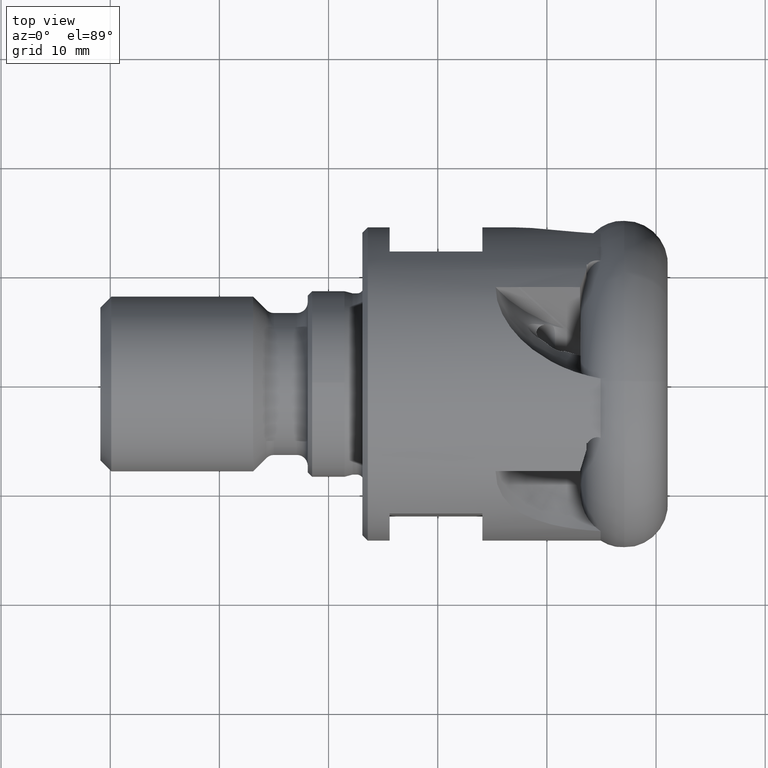
[diagram: clean part render]
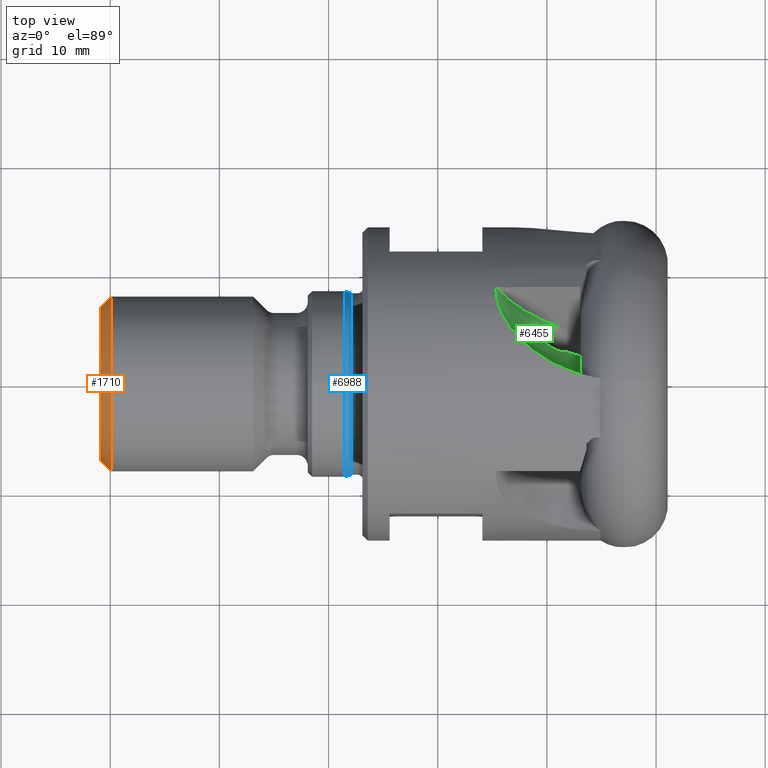
[diagram: same view with three faces highlighted in distinct colors, each labeled with its STEP entity id]
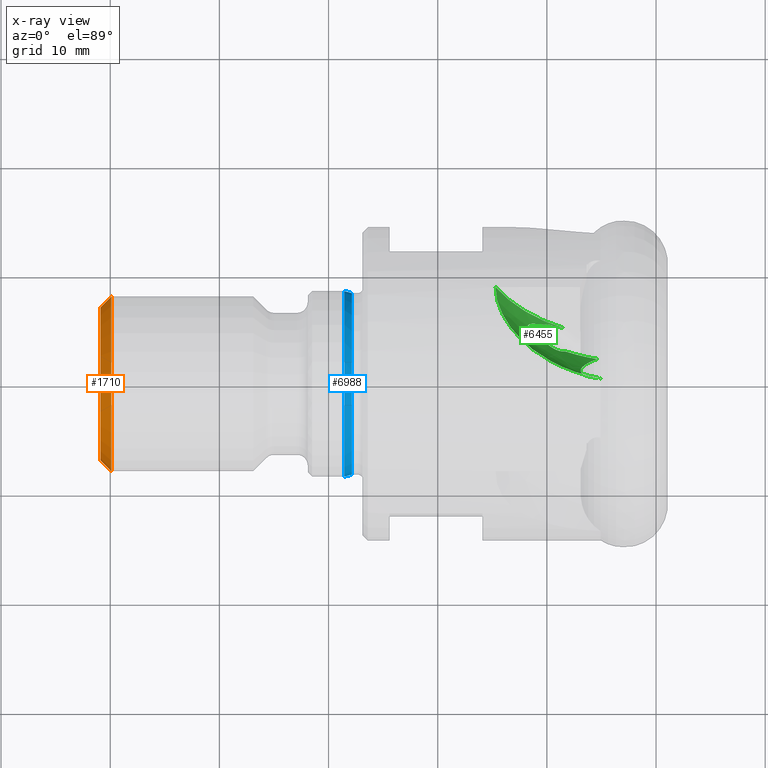
[diagram: x-ray of the same camera — body ghosted, the three highlighted faces saturated]
A machine part, top view with three faces highlighted in distinct colors.
The next image is the same camera in x-ray (body ghosted, the three faces saturated) — at least one of them is partly hidden behind the body in this view.
Their STEP definitions:

[orange] entity #1710 — the highlighted conical surface has half-angle 45 deg.
#270 = FACE_OUTER_BOUND ( 'NONE', #6860, .T. ) ;
#307 = DIRECTION ( 'NONE',  ( 1.000000000000000000, 1.048127383635773700E-016, -0.0000000000000000000 ) ) ;
#730 = CIRCLE ( 'NONE', #5746, 6.999999999999986700 ) ;
#889 = CARTESIAN_POINT ( 'NONE',  ( -49.90800000000000100, 7.999999999999994700, 0.0000000000000000000 ) ) ;
#1012 = CARTESIAN_POINT ( 'NONE',  ( -49.90800000000000100, -5.230994146249419500E-015, 0.0000000000000000000 ) ) ;
#1200 = AXIS2_PLACEMENT_3D ( 'NONE', #2182, #307, #5363 ) ;
#1413 = EDGE_CURVE ( 'NONE', #3589, #4894, #2075, .T. ) ;
#1710 = ADVANCED_FACE ( 'NONE', ( #270 ), #3466, .T. ) ;
#2005 = CARTESIAN_POINT ( 'NONE',  ( -49.90800000000000100, -8.000000000000005300, 9.797174393178825700E-016 ) ) ;
#2075 = LINE ( 'NONE', #2005, #5380 ) ;
#2182 = CARTESIAN_POINT ( 'NONE',  ( -49.90800000000000100, -5.230994146249419500E-015, 0.0000000000000000000 ) ) ;
#2585 = CARTESIAN_POINT ( 'NONE',  ( -49.90800000000000100, -8.000000000000005300, 9.797174393178827600E-016 ) ) ;
#2676 = DIRECTION ( 'NONE',  ( 0.7071067811865431300, -0.7071067811865520100, 8.659560562354990800E-017 ) ) ;
#3206 = ORIENTED_EDGE ( 'NONE', *, *, #8330, .F. ) ;
#3427 = ORIENTED_EDGE ( 'NONE', *, *, #7788, .F. ) ;
#3466 = CONICAL_SURFACE ( 'NONE', #1200, 8.000000000000000000, 0.7853981633974548300 ) ;
#3589 = VERTEX_POINT ( 'NONE', #5468 ) ;
#3893 = DIRECTION ( 'NONE',  ( 1.000000000000000000, 1.048127383635773700E-016, -0.0000000000000000000 ) ) ;
#4217 = AXIS2_PLACEMENT_3D ( 'NONE', #1012, #5465, #6092 ) ;
#4632 = LINE ( 'NONE', #889, #7980 ) ;
#4894 = VERTEX_POINT ( 'NONE', #2585 ) ;
#5007 = EDGE_CURVE ( 'NONE', #7837, #3589, #730, .T. ) ;
#5363 = DIRECTION ( 'NONE',  ( 0.0000000000000000000, 1.000000000000000000, 0.0000000000000000000 ) ) ;
#5380 = VECTOR ( 'NONE', #2676, 999.9999999999998900 ) ;
#5465 = DIRECTION ( 'NONE',  ( 1.000000000000000000, 1.048127383635773700E-016, -0.0000000000000000000 ) ) ;
#5468 = CARTESIAN_POINT ( 'NONE',  ( -50.90800000000000100, -6.999999999999991100, 9.184850993605140100E-016 ) ) ;
#5746 = AXIS2_PLACEMENT_3D ( 'NONE', #5864, #3893, #5891 ) ;
#5864 = CARTESIAN_POINT ( 'NONE',  ( -50.90800000000000100, -5.335806884612996700E-015, 0.0000000000000000000 ) ) ;
#5891 = DIRECTION ( 'NONE',  ( 0.0000000000000000000, 1.000000000000000000, 0.0000000000000000000 ) ) ;
#6092 = DIRECTION ( 'NONE',  ( 0.0000000000000000000, 1.000000000000000000, 0.0000000000000000000 ) ) ;
#6860 = EDGE_LOOP ( 'NONE', ( #7571, #7769, #3206, #3427 ) ) ;
#7067 = CARTESIAN_POINT ( 'NONE',  ( -49.90800000000000100, 7.999999999999994700, 0.0000000000000000000 ) ) ;
#7571 = ORIENTED_EDGE ( 'NONE', *, *, #5007, .T. ) ;
#7625 = CIRCLE ( 'NONE', #4217, 8.000000000000000000 ) ;
#7769 = ORIENTED_EDGE ( 'NONE', *, *, #1413, .T. ) ;
#7788 = EDGE_CURVE ( 'NONE', #7837, #8076, #4632, .T. ) ;
#7837 = VERTEX_POINT ( 'NONE', #8119 ) ;
#7924 = DIRECTION ( 'NONE',  ( 0.7071067811865428000, 0.7071067811865522400, 0.0000000000000000000 ) ) ;
#7980 = VECTOR ( 'NONE', #7924, 1000.000000000000000 ) ;
#8076 = VERTEX_POINT ( 'NONE', #7067 ) ;
#8119 = CARTESIAN_POINT ( 'NONE',  ( -50.90800000000000100, 6.999999999999981300, 0.0000000000000000000 ) ) ;
#8330 = EDGE_CURVE ( 'NONE', #8076, #4894, #7625, .T. ) ;

[blue] entity #6988 — the highlighted conical surface has half-angle 15 deg.
#150 = CARTESIAN_POINT ( 'NONE',  ( -28.53479491924310100, 1.040949779275249900E-015, 8.499999999999996400 ) ) ;
#317 = EDGE_CURVE ( 'NONE', #3247, #5016, #4773, .T. ) ;
#407 = CARTESIAN_POINT ( 'NONE',  ( -27.86468468623841200, -2.920573905602287900E-015, 0.0000000000000000000 ) ) ;
#525 = DIRECTION ( 'NONE',  ( -1.000000000000000000, -1.048127383635773700E-016, 0.0000000000000000000 ) ) ;
#560 = LINE ( 'NONE', #7153, #4766 ) ;
#788 = CARTESIAN_POINT ( 'NONE',  ( -28.53479491924310100, -8.500000000000000000, 0.0000000000000000000 ) ) ;
#856 = FACE_OUTER_BOUND ( 'NONE', #2136, .T. ) ;
#1080 = CARTESIAN_POINT ( 'NONE',  ( -27.86468468623841200, -8.320444504226562900, 0.0000000000000000000 ) ) ;
#1221 = VERTEX_POINT ( 'NONE', #6907 ) ;
#1441 = ORIENTED_EDGE ( 'NONE', *, *, #5824, .F. ) ;
#2029 = EDGE_CURVE ( 'NONE', #5016, #5030, #7241, .T. ) ;
#2136 = EDGE_LOOP ( 'NONE', ( #3960, #2253, #1441, #7335, #7491 ) ) ;
#2253 = ORIENTED_EDGE ( 'NONE', *, *, #6756, .T. ) ;
#2365 = DIRECTION ( 'NONE',  ( -0.9659258262890679800, -0.2588190451025217900, 0.0000000000000000000 ) ) ;
#2509 = VERTEX_POINT ( 'NONE', #6314 ) ;
#2589 = CARTESIAN_POINT ( 'NONE',  ( -27.86468468623841200, -8.320444504226562900, 1.018960572958424200E-015 ) ) ;
#2734 = CARTESIAN_POINT ( 'NONE',  ( -27.86468468623841200, -2.920573905602287900E-015, 0.0000000000000000000 ) ) ;
#2839 = EDGE_CURVE ( 'NONE', #2509, #3247, #5199, .T. ) ;
#2939 = DIRECTION ( 'NONE',  ( 0.0000000000000000000, -1.000000000000000000, 0.0000000000000000000 ) ) ;
#3067 = DIRECTION ( 'NONE',  ( 0.0000000000000000000, -1.000000000000000000, 0.0000000000000000000 ) ) ;
#3070 = VECTOR ( 'NONE', #2365, 1000.000000000000000 ) ;
#3247 = VERTEX_POINT ( 'NONE', #2589 ) ;
#3292 = AXIS2_PLACEMENT_3D ( 'NONE', #407, #6696, #2939 ) ;
#3617 = AXIS2_PLACEMENT_3D ( 'NONE', #4501, #5137, #7118 ) ;
#3930 = DIRECTION ( 'NONE',  ( -0.9659258262890680900, 0.2588190451025215700, 3.169619151431776000E-017 ) ) ;
#3960 = ORIENTED_EDGE ( 'NONE', *, *, #2839, .F. ) ;
#4501 = CARTESIAN_POINT ( 'NONE',  ( -28.53479491924310100, -2.990809994128964000E-015, 0.0000000000000000000 ) ) ;
#4766 = VECTOR ( 'NONE', #3930, 1000.000000000000200 ) ;
#4773 = LINE ( 'NONE', #1080, #3070 ) ;
#5016 = VERTEX_POINT ( 'NONE', #788 ) ;
#5030 = VERTEX_POINT ( 'NONE', #150 ) ;
#5137 = DIRECTION ( 'NONE',  ( -1.000000000000000000, -1.048127383635773700E-016, 0.0000000000000000000 ) ) ;
#5199 = CIRCLE ( 'NONE', #7298, 8.320444504226559300 ) ;
#5254 = AXIS2_PLACEMENT_3D ( 'NONE', #7610, #525, #3067 ) ;
#5275 = DIRECTION ( 'NONE',  ( 1.000000000000000000, 1.048127383635773700E-016, -0.0000000000000000000 ) ) ;
#5824 = EDGE_CURVE ( 'NONE', #5030, #1221, #8226, .T. ) ;
#6314 = CARTESIAN_POINT ( 'NONE',  ( -27.86468468623841200, 8.320444504226555800, 0.0000000000000000000 ) ) ;
#6696 = DIRECTION ( 'NONE',  ( -1.000000000000000000, -1.048127383635773700E-016, 0.0000000000000000000 ) ) ;
#6756 = EDGE_CURVE ( 'NONE', #2509, #1221, #560, .T. ) ;
#6907 = CARTESIAN_POINT ( 'NONE',  ( -28.53479491924310100, 8.499999999999992900, 1.040949779275249900E-015 ) ) ;
#6988 = ADVANCED_FACE ( 'NONE', ( #856 ), #7503, .T. ) ;
#7118 = DIRECTION ( 'NONE',  ( 0.0000000000000000000, -1.000000000000000000, 0.0000000000000000000 ) ) ;
#7153 = CARTESIAN_POINT ( 'NONE',  ( -27.86468468623841200, 8.320444504226555800, 1.018960572958424200E-015 ) ) ;
#7241 = CIRCLE ( 'NONE', #3617, 8.499999999999996400 ) ;
#7243 = DIRECTION ( 'NONE',  ( 0.0000000000000000000, 1.000000000000000000, 0.0000000000000000000 ) ) ;
#7298 = AXIS2_PLACEMENT_3D ( 'NONE', #2734, #5275, #7243 ) ;
#7335 = ORIENTED_EDGE ( 'NONE', *, *, #2029, .F. ) ;
#7491 = ORIENTED_EDGE ( 'NONE', *, *, #317, .F. ) ;
#7503 = CONICAL_SURFACE ( 'NONE', #3292, 8.320444504226559300, 0.2617993877991504100 ) ;
#7610 = CARTESIAN_POINT ( 'NONE',  ( -28.53479491924310100, -2.990809994128964000E-015, 0.0000000000000000000 ) ) ;
#8226 = CIRCLE ( 'NONE', #5254, 8.499999999999996400 ) ;

[green] entity #6455 — the highlighted face is a freeform B-spline surface patch.
#21 = VERTEX_POINT ( 'NONE', #1423 ) ;
#122 = VERTEX_POINT ( 'NONE', #2394 ) ;
#127 = ORIENTED_EDGE ( 'NONE', *, *, #6504, .T. ) ;
#203 = CARTESIAN_POINT ( 'NONE',  ( -6.915883220873785000, 1.108433315112930900, 10.65211864587391900 ) ) ;
#223 = CARTESIAN_POINT ( 'NONE',  ( -11.99865759766023600, 3.481798724401035100, 13.92646286114166000 ) ) ;
#256 = CARTESIAN_POINT ( 'NONE',  ( -5.074100262649287700, 0.2516947411806405000, 14.34779250467689200 ) ) ;
#275 = B_SPLINE_CURVE_WITH_KNOTS ( 'NONE', 3,
 ( #2843, #5425, #6082, #7437, #8202, #2947, #6818, #391 ),
 .UNSPECIFIED., .F., .F.,
 ( 4, 2, 2, 4 ),
 ( 0.001444025349733204000, 0.001977964350555089800, 0.002511903351376975500, 0.003579781353020746900 ),
 .UNSPECIFIED. ) ;
#335 = CARTESIAN_POINT ( 'NONE',  ( -5.452550337404983500, 1.485800539354654700, 7.444879750895901300 ) ) ;
#390 = CARTESIAN_POINT ( 'NONE',  ( -5.074100262649287700, 0.2516947411806405000, 14.34779250467689200 ) ) ;
#391 = CARTESIAN_POINT ( 'NONE',  ( -10.04705301473807400, 3.579390289513429700, 9.202284921320140800 ) ) ;
#481 = CARTESIAN_POINT ( 'NONE',  ( -6.630694444002939400, 1.493206361108864200, 9.383225196688613300 ) ) ;
#535 = CARTESIAN_POINT ( 'NONE',  ( -6.369966266518365400, 1.687665216495529900, 8.790254688188415600 ) ) ;
#551 = CARTESIAN_POINT ( 'NONE',  ( -11.39741391621269500, 5.362025304935301100, 8.708754519826658900 ) ) ;
#674 = CARTESIAN_POINT ( 'NONE',  ( -10.25096557331367500, 5.312795999085500000, 7.526001710038909400 ) ) ;
#859 = CARTESIAN_POINT ( 'NONE',  ( -11.06656975545760700, 2.740939522513406300, 14.08685415194101700 ) ) ;
#896 = CARTESIAN_POINT ( 'NONE',  ( -5.358921438107543600, 0.2865343577667664500, 14.16424373822686200 ) ) ;
#921 = CARTESIAN_POINT ( 'NONE',  ( -10.32792461828439200, 2.241568479290999300, 14.17467156761693800 ) ) ;
#991 = B_SPLINE_CURVE_WITH_KNOTS ( 'NONE', 3,
 ( #3303, #2637, #5156, #7085 ),
 .UNSPECIFIED., .F., .F.,
 ( 4, 4 ),
 ( 2.085279046689388600E-017, 0.001222898048774784400 ),
 .UNSPECIFIED. ) ;
#999 = CARTESIAN_POINT ( 'NONE',  ( -13.18807494335127300, 3.698896622420871200, 15.90004167077010600 ) ) ;
#1033 = CARTESIAN_POINT ( 'NONE',  ( -8.338957689633105000, 2.843554152809835100, 8.485341238734937600 ) ) ;
#1194 = CARTESIAN_POINT ( 'NONE',  ( -11.73580631902909100, 5.067503062633941900, 9.481410008525106300 ) ) ;
#1195 = CARTESIAN_POINT ( 'NONE',  ( -9.472346055733753500, 5.202493060809523200, 6.941992998034002900 ) ) ;
#1224 = CARTESIAN_POINT ( 'NONE',  ( -11.61799081035095700, 5.304848158531818600, 9.051766250465517400 ) ) ;
#1325 = CARTESIAN_POINT ( 'NONE',  ( -10.37851918409949500, 3.777716834836435800, 9.323945595000406400 ) ) ;
#1373 = VERTEX_POINT ( 'NONE', #1195 ) ;
#1389 = CARTESIAN_POINT ( 'NONE',  ( -8.420963146052406100, 4.983575348990172000, 6.348912524644556600 ) ) ;
#1422 = ORIENTED_EDGE ( 'NONE', *, *, #7323, .F. ) ;
#1423 = CARTESIAN_POINT ( 'NONE',  ( -5.355807354959812200, 2.140890290917118100, 7.518207403058350600 ) ) ;
#1437 = CARTESIAN_POINT ( 'NONE',  ( -14.70646447844221100, 8.193179067886243100, 11.79665554036384400 ) ) ;
#1469 = CARTESIAN_POINT ( 'NONE',  ( -14.69983681011817800, 8.675580038252057600, 11.43052102923932300 ) ) ;
#1494 = B_SPLINE_CURVE_WITH_KNOTS ( 'NONE', 3,
 ( #5571, #6820, #1652, #3546, #1623, #8090 ),
 .UNSPECIFIED., .F., .F.,
 ( 4, 2, 4 ),
 ( 0.006369113915017330200, 0.006864753864139567500, 0.007360393813261804900 ),
 .UNSPECIFIED. ) ;
#1497 = DIRECTION ( 'NONE',  ( 1.896080249266859800E-016, -0.8090169943749425700, 0.5877852522924798000 ) ) ;
#1554 = CARTESIAN_POINT ( 'NONE',  ( -7.373570425927781900, 0.8418190242133639600, 14.32630928618696200 ) ) ;
#1555 = CARTESIAN_POINT ( 'NONE',  ( -12.80577058329978800, 6.516602939613394000, 8.458943983961814800 ) ) ;
#1620 = CARTESIAN_POINT ( 'NONE',  ( -4.849443281778580000, -0.1715830620160636000, 10.57278340956022500 ) ) ;
#1623 = CARTESIAN_POINT ( 'NONE',  ( -9.612190061732857100, 5.261940705045313700, 7.007971689066929200 ) ) ;
#1652 = CARTESIAN_POINT ( 'NONE',  ( -10.01687696351598000, 5.341650196629206700, 7.289435063946097400 ) ) ;
#1838 = CARTESIAN_POINT ( 'NONE',  ( -11.70564417135191200, 4.984856493286354600, 9.537076039059213500 ) ) ;
#1951 = CARTESIAN_POINT ( 'NONE',  ( -1.513101572890601400, 10.31643726059663600, 18.77088244208793100 ) ) ;
#2004 = CARTESIAN_POINT ( 'NONE',  ( -11.32708563753289100, 4.504188230940613400, 9.599678484468086000 ) ) ;
#2096 = CARTESIAN_POINT ( 'NONE',  ( -9.563789143980599800, 1.787130688554642100, 14.24157424903095400 ) ) ;
#2103 = CARTESIAN_POINT ( 'NONE',  ( -6.705651591270995300, 0.6839003916969693700, 12.27634549414190700 ) ) ;
#2114 = ORIENTED_EDGE ( 'NONE', *, *, #4220, .T. ) ;
#2127 = CARTESIAN_POINT ( 'NONE',  ( -14.63226985678680200, 7.700161991558142700, 12.12297257114279100 ) ) ;
#2184 = CARTESIAN_POINT ( 'NONE',  ( -12.42418491847553200, 3.885187099506307800, 13.82155405085718800 ) ) ;
#2261 = CARTESIAN_POINT ( 'NONE',  ( -6.231843352966959200, 0.4998657738717663900, 14.34231261830273500 ) ) ;
#2315 = ORIENTED_EDGE ( 'NONE', *, *, #5723, .T. ) ;
#2329 = CARTESIAN_POINT ( 'NONE',  ( -6.571201051718267300, 1.541940956220528400, 9.232398825107138100 ) ) ;
#2356 = AXIS2_PLACEMENT_3D ( 'NONE', #1951, #7097, #3847 ) ;
#2394 = CARTESIAN_POINT ( 'NONE',  ( -5.074100262649287700, 0.2516947411806405000, 14.34779250467689200 ) ) ;
#2444 = CARTESIAN_POINT ( 'NONE',  ( -5.355807354959812200, 2.140890290917118100, 7.518207403058350600 ) ) ;
#2463 = CARTESIAN_POINT ( 'NONE',  ( -11.56604005668105000, 5.322578313252823700, 8.964882599226488200 ) ) ;
#2637 = CARTESIAN_POINT ( 'NONE',  ( -8.786530610216758000, 5.075470298450518700, 6.518902925648467800 ) ) ;
#2674 = CARTESIAN_POINT ( 'NONE',  ( -11.53674424938746100, 4.733537427876473900, 9.604947775807346500 ) ) ;
#2764 = CARTESIAN_POINT ( 'NONE',  ( -14.09254990793362700, 6.194467214602476600, 12.94715683968861200 ) ) ;
#2843 = CARTESIAN_POINT ( 'NONE',  ( -8.338957689633105000, 2.843554152809835100, 8.485341238734937600 ) ) ;
#2910 = ORIENTED_EDGE ( 'NONE', *, *, #7797, .T. ) ;
#2947 = CARTESIAN_POINT ( 'NONE',  ( -9.485639182944508400, 3.122697054824404600, 9.223453658579796200 ) ) ;
#3146 = CARTESIAN_POINT ( 'NONE',  ( -11.26845864376115900, 5.369278657134339400, 8.545543981788480200 ) ) ;
#3259 = CARTESIAN_POINT ( 'NONE',  ( -10.70330900907558600, 3.997768197022367500, 9.433197791358141500 ) ) ;
#3303 = CARTESIAN_POINT ( 'NONE',  ( -8.420963146052406100, 4.983575348990172000, 6.348912524644556600 ) ) ;
#3403 = CARTESIAN_POINT ( 'NONE',  ( -13.19432903900449700, 4.754048315949569700, 13.54728975804954900 ) ) ;
#3429 = CARTESIAN_POINT ( 'NONE',  ( -1.513101572890601900, 12.73303154272629100, 17.01512392318612000 ) ) ;
#3459 = CARTESIAN_POINT ( 'NONE',  ( -14.31350319673542700, 6.692897959533192800, 12.69666929582546900 ) ) ;
#3460 = CARTESIAN_POINT ( 'NONE',  ( -14.74160504866387300, 5.912342119367922400, 13.53749155183996100 ) ) ;
#3544 = CARTESIAN_POINT ( 'NONE',  ( -5.452550337404984400, 4.296287259595506400, 5.402941624246585300 ) ) ;
#3546 = CARTESIAN_POINT ( 'NONE',  ( -9.752954961657868800, 5.303351585254798600, 7.092503032562277100 ) ) ;
#3588 = CARTESIAN_POINT ( 'NONE',  ( -6.910691292415067200, 0.9729055541355312600, 11.14484778862576100 ) ) ;
#3630 = CARTESIAN_POINT ( 'NONE',  ( -5.655425139769597800, 0.3613909900156635500, 14.34586816900292700 ) ) ;
#3725 = CARTESIAN_POINT ( 'NONE',  ( -6.204022243004692100, 1.785129536410217800, 8.506772175873344100 ) ) ;
#3743 = CARTESIAN_POINT ( 'NONE',  ( -11.70384259356642100, 5.246288092501612400, 9.231118760618329600 ) ) ;
#3781 = ORIENTED_EDGE ( 'NONE', *, *, #6703, .F. ) ;
#3795 = CARTESIAN_POINT ( 'NONE',  ( -11.60333608878284700, 4.814208097493872400, 9.599061102234504300 ) ) ;
#3844 = CARTESIAN_POINT ( 'NONE',  ( -10.04705301473807400, 3.579390289513429700, 9.202284921320140800 ) ) ;
#3847 = DIRECTION ( 'NONE',  ( 0.0000000000000000000, -0.5877852522924796900, -0.8090169943749426800 ) ) ;
#3913 = VERTEX_POINT ( 'NONE', #1389 ) ;
#3990 = AXIS2_PLACEMENT_3D ( 'NONE', #3429, #1497, #4075 ) ;
#4056 = CARTESIAN_POINT ( 'NONE',  ( -5.958792793094038300, 0.4001699437523388900, 13.57634483312614300 ) ) ;
#4075 = DIRECTION ( 'NONE',  ( 0.0000000000000000000, -0.5877852522924798000, -0.8090169943749425700 ) ) ;
#4076 = CARTESIAN_POINT ( 'NONE',  ( -8.480493996297957100, 0.3848459779629446700, 11.33864228021245100 ) ) ;
#4105 = ORIENTED_EDGE ( 'NONE', *, *, #7395, .T. ) ;
#4161 = CARTESIAN_POINT ( 'NONE',  ( -12.80577058329978600, 3.706116219372542100, 10.50088211061113300 ) ) ;
#4220 = EDGE_CURVE ( 'NONE', #21, #5681, #8191, .T. ) ;
#4225 =( BOUNDED_SURFACE ( )  B_SPLINE_SURFACE ( 3, 3, ( 
 ( #6762, #8006, #7304, #8032 ),
 ( #999, #7328, #4076, #1620 ),
 ( #3460, #4161, #5394, #335 ),
 ( #7412, #1555, #7979, #3544 ) ),
 .UNSPECIFIED., .F., .F., .T. ) 
 B_SPLINE_SURFACE_WITH_KNOTS ( ( 4, 4 ),
 ( 4, 4 ),
 ( 0.3915967886660375300, 1.000000000000000000 ),
 ( 0.0000000000000000000, 1.000000000000000000 ),
 .UNSPECIFIED. ) 
 GEOMETRIC_REPRESENTATION_ITEM ( )  RATIONAL_B_SPLINE_SURFACE ( (
 ( 0.8429497397102445600, 0.7956136395192421300, 0.7956136395192421300, 0.8429497397102445600),
 ( 0.8139662664898461600, 0.7682577420932388300, 0.7682577420932388300, 0.8139662664898461600),
 ( 0.8663163532530979700, 0.8176680937390863300, 0.8176680937390863300, 0.8663163532530979700),
 ( 1.000000000000000000, 0.9438446944567848700, 0.9438446944567848700, 1.000000000000000000) ) ) 
 REPRESENTATION_ITEM ( '' )  SURFACE ( )  );
#4232 = CARTESIAN_POINT ( 'NONE',  ( -6.881626997928621300, 1.201892366648211800, 10.32874513152477800 ) ) ;
#4343 = CARTESIAN_POINT ( 'NONE',  ( -10.56466809203515700, 5.348282463647791500, 7.789845542628746100 ) ) ;
#4351 = CARTESIAN_POINT ( 'NONE',  ( -5.600306236559029900, 2.060798842004049700, 7.737117668704142300 ) ) ;
#4560 = CARTESIAN_POINT ( 'NONE',  ( -10.86450497190181600, 4.116042569600834300, 9.483831884384565900 ) ) ;
#4568 = B_SPLINE_CURVE_WITH_KNOTS ( 'NONE', 3,
 ( #1469, #1437, #2127, #5937, #3459, #2764, #7275, #6022, #3403, #2184, #223, #4750, #859, #6685, #921, #2096, #5392, #6597, #1554, #2261, #3630, #390 ),
 .UNSPECIFIED., .F., .F.,
 ( 4, 2, 2, 2, 2, 2, 2, 2, 2, 2, 4 ),
 ( 2.453269466693398700E-018, 0.001786637932897005100, 0.002679956899345505500, 0.003573275865794005800, 0.005359913798691010000, 0.007146551731588013400, 0.008039870698036513300, 0.008933189664485016700, 0.01071982759738201500, 0.01250646553027901500, 0.01429310346317601500 ),
 .UNSPECIFIED. ) ;
#4666 = CARTESIAN_POINT ( 'NONE',  ( -6.777666542526684900, 1.346441590459965600, 9.850820023142853500 ) ) ;
#4750 = CARTESIAN_POINT ( 'NONE',  ( -11.30667669216971100, 2.920739703684433600, 14.05092442255388000 ) ) ;
#4872 = CARTESIAN_POINT ( 'NONE',  ( -6.065820490256684600, 0.4268063754876478800, 13.44436047909543500 ) ) ;
#4999 = CARTESIAN_POINT ( 'NONE',  ( -10.86289224561606500, 5.372504873526333200, 8.076677725517083000 ) ) ;
#5034 = CARTESIAN_POINT ( 'NONE',  ( -11.74272891371804100, 5.106232290605769100, 9.445658131307148200 ) ) ;
#5060 = CARTESIAN_POINT ( 'NONE',  ( -11.68310877716591600, 4.941786354023324900, 9.556970055678428700 ) ) ;
#5156 = CARTESIAN_POINT ( 'NONE',  ( -9.136360033822299400, 5.145717463140872600, 6.718259190295324100 ) ) ;
#5220 = CARTESIAN_POINT ( 'NONE',  ( -11.17622091078984600, 4.370091018919861600, 9.565841036213376100 ) ) ;
#5289 = CARTESIAN_POINT ( 'NONE',  ( -5.615670039255894300, 0.3267968939668823300, 13.94817261450753400 ) ) ;
#5316 = CARTESIAN_POINT ( 'NONE',  ( -6.583819112228715300, 0.6103897643284574800, 12.59181928329191900 ) ) ;
#5368 = CIRCLE ( 'NONE', #3990, 14.88424295726788500 ) ;
#5392 = CARTESIAN_POINT ( 'NONE',  ( -9.034685846624249500, 1.519039347097147300, 14.27134360463249300 ) ) ;
#5394 = CARTESIAN_POINT ( 'NONE',  ( -9.525197424808190800, 2.142814683992687400, 8.349182141069507100 ) ) ;
#5425 = CARTESIAN_POINT ( 'NONE',  ( -8.451664277619828500, 2.817887279794582400, 8.623253684022138500 ) ) ;
#5571 = CARTESIAN_POINT ( 'NONE',  ( -10.25096557331367500, 5.312795999085500000, 7.526001710038909400 ) ) ;
#5681 = VERTEX_POINT ( 'NONE', #1033 ) ;
#5723 = EDGE_CURVE ( 'NONE', #7352, #1373, #1494, .T. ) ;
#5937 = CARTESIAN_POINT ( 'NONE',  ( -14.40811349964155300, 6.947474079874699400, 12.55942747794254900 ) ) ;
#5946 = CARTESIAN_POINT ( 'NONE',  ( -6.259754691299217900, 0.4834730002390295000, 13.17193757853441700 ) ) ;
#6022 = CARTESIAN_POINT ( 'NONE',  ( -13.54124938334368300, 5.224769063514374400, 13.37539908207249400 ) ) ;
#6082 = CARTESIAN_POINT ( 'NONE',  ( -8.583687381102750500, 2.818817936587660000, 8.747138040952753700 ) ) ;
#6232 = CARTESIAN_POINT ( 'NONE',  ( -5.817800999729583600, 1.972074230462382600, 7.979067016737473300 ) ) ;
#6291 = FACE_OUTER_BOUND ( 'NONE', #7369, .T. ) ;
#6421 = CARTESIAN_POINT ( 'NONE',  ( -10.21386972521568600, 3.675294291503986300, 9.264765274718197200 ) ) ;
#6455 = ADVANCED_FACE ( 'NONE', ( #6291 ), #4225, .F. ) ;
#6504 = EDGE_CURVE ( 'NONE', #5681, #7345, #275, .T. ) ;
#6553 = CARTESIAN_POINT ( 'NONE',  ( -10.04705301473807400, 3.579390289513429700, 9.202284921320140800 ) ) ;
#6597 = CARTESIAN_POINT ( 'NONE',  ( -7.941171551886167600, 1.046685929768840500, 14.31374085918625700 ) ) ;
#6603 = CARTESIAN_POINT ( 'NONE',  ( -6.826701155044736100, 0.8023700013805601400, 11.79762685525651700 ) ) ;
#6609 = B_SPLINE_CURVE_WITH_KNOTS ( 'NONE', 3,
 ( #7607, #4343, #4999, #3146, #551, #2463, #1224, #3743, #8264, #5034, #1194, #1838, #5060, #3795, #2674, #2004, #5220, #4560, #3259, #1325, #6421, #3844 ),
 .UNSPECIFIED., .F., .F.,
 ( 4, 2, 2, 2, 2, 2, 2, 2, 2, 2, 4 ),
 ( 0.002200373060314869700, 0.003424868702524851800, 0.004037116523629842900, 0.004343240434182339300, 0.004649364344734835700, 0.004802426300011082200, 0.004955488255287328700, 0.005261612165839821600, 0.005873859986944805800, 0.006486107808049789000, 0.007098355629154772300 ),
 .UNSPECIFIED. ) ;
#6685 = CARTESIAN_POINT ( 'NONE',  ( -10.57769976716079400, 2.401790983736164600, 14.14862570833569000 ) ) ;
#6703 = EDGE_CURVE ( 'NONE', #7352, #7345, #6609, .T. ) ;
#6762 = CARTESIAN_POINT ( 'NONE',  ( -10.24126164692486000, 2.834432418206795900, 17.95907210032439100 ) ) ;
#6799 = CARTESIAN_POINT ( 'NONE',  ( -6.347523605528016000, 0.5136709407028061700, 13.03062085143874600 ) ) ;
#6818 = CARTESIAN_POINT ( 'NONE',  ( -9.793142464758879800, 3.333288845939913700, 9.254750383672615000 ) ) ;
#6820 = CARTESIAN_POINT ( 'NONE',  ( -10.14215198398355400, 5.338797108414629700, 7.403462816545060200 ) ) ;
#6863 = VERTEX_POINT ( 'NONE', #7969 ) ;
#7085 = CARTESIAN_POINT ( 'NONE',  ( -9.472346055733753500, 5.202493060809523200, 6.941992998034002900 ) ) ;
#7097 = DIRECTION ( 'NONE',  ( -1.896080249266859800E-016, 0.8090169943749425700, -0.5877852522924798000 ) ) ;
#7133 = ORIENTED_EDGE ( 'NONE', *, *, #7743, .F. ) ;
#7275 = CARTESIAN_POINT ( 'NONE',  ( -13.96596693476521300, 5.949112748280187500, 13.06138624347319600 ) ) ;
#7304 = CARTESIAN_POINT ( 'NONE',  ( -6.498848488799560600, 0.3843528413830383200, 14.58682686706856100 ) ) ;
#7309 = CARTESIAN_POINT ( 'NONE',  ( -6.857276701422532200, 0.8433783033690966900, 11.63634046001674000 ) ) ;
#7323 = EDGE_CURVE ( 'NONE', #3913, #1373, #991, .T. ) ;
#7328 = CARTESIAN_POINT ( 'NONE',  ( -11.42541057369167800, 1.751765665480860000, 13.22004582484819000 ) ) ;
#7345 = VERTEX_POINT ( 'NONE', #6553 ) ;
#7352 = VERTEX_POINT ( 'NONE', #674 ) ;
#7369 = EDGE_LOOP ( 'NONE', ( #2910, #4105, #2114, #127, #3781, #2315, #1422, #7133 ) ) ;
#7395 = EDGE_CURVE ( 'NONE', #122, #21, #7741, .T. ) ;
#7412 = CARTESIAN_POINT ( 'NONE',  ( -14.74160504866387300, 8.722828839608773400, 11.49555342519064500 ) ) ;
#7437 = CARTESIAN_POINT ( 'NONE',  ( -8.871391609248624000, 2.869381607077104800, 8.956500206003278600 ) ) ;
#7450 = CARTESIAN_POINT ( 'NONE',  ( -6.899287340736598200, 0.9285074921150441300, 11.31044724519048100 ) ) ;
#7538 = CARTESIAN_POINT ( 'NONE',  ( -6.733889922181350400, 1.395554565333259500, 9.692099735206458200 ) ) ;
#7607 = CARTESIAN_POINT ( 'NONE',  ( -10.25096557331367500, 5.312795999085500000, 7.526001710038909400 ) ) ;
#7741 = B_SPLINE_CURVE_WITH_KNOTS ( 'NONE', 3,
 ( #256, #896, #5289, #4056, #4872, #5946, #6799, #5316, #2103, #6603, #7309, #7450, #3588, #203, #4232, #4666, #7538, #481, #2329, #535, #3725, #6232, #4351, #2444 ),
 .UNSPECIFIED., .F., .F.,
 ( 4, 2, 2, 2, 2, 2, 2, 2, 2, 2, 2, 4 ),
 ( 0.0001760411316069041300, 0.001189957854062694400, 0.001696916215290589700, 0.002203874576518485100, 0.003217791298974275300, 0.003724749660202168800, 0.004231708021430062400, 0.005245624743885853900, 0.005752583105113749700, 0.006259541466341645400, 0.007273458188797441200, 0.008287374911253237900 ),
 .UNSPECIFIED. ) ;
#7743 = EDGE_CURVE ( 'NONE', #6863, #3913, #5368, .T. ) ;
#7797 = EDGE_CURVE ( 'NONE', #6863, #122, #4568, .T. ) ;
#7969 = CARTESIAN_POINT ( 'NONE',  ( -14.69983681011817800, 8.675580038252057600, 11.43052102923932300 ) ) ;
#7979 = CARTESIAN_POINT ( 'NONE',  ( -9.525197424808189000, 4.953301404233538800, 6.307244014420192900 ) ) ;
#8006 = CARTESIAN_POINT ( 'NONE',  ( -8.807074941663499200, 1.378765656663737800, 15.95551868750573900 ) ) ;
#8032 = CARTESIAN_POINT ( 'NONE',  ( -3.705439773503560000, 0.01871863879922448800, 14.08357456112631700 ) ) ;
#8090 = CARTESIAN_POINT ( 'NONE',  ( -9.472346055733753500, 5.202493060809523200, 6.941992998034002900 ) ) ;
#8191 = CIRCLE ( 'NONE', #2356, 14.43012998953867600 ) ;
#8202 = CARTESIAN_POINT ( 'NONE',  ( -9.024449388581780700, 2.918545497567591500, 9.040100419129121400 ) ) ;
#8264 = CARTESIAN_POINT ( 'NONE',  ( -11.73808705071170900, 5.204529699358373800, 9.325230914299190500 ) ) ;